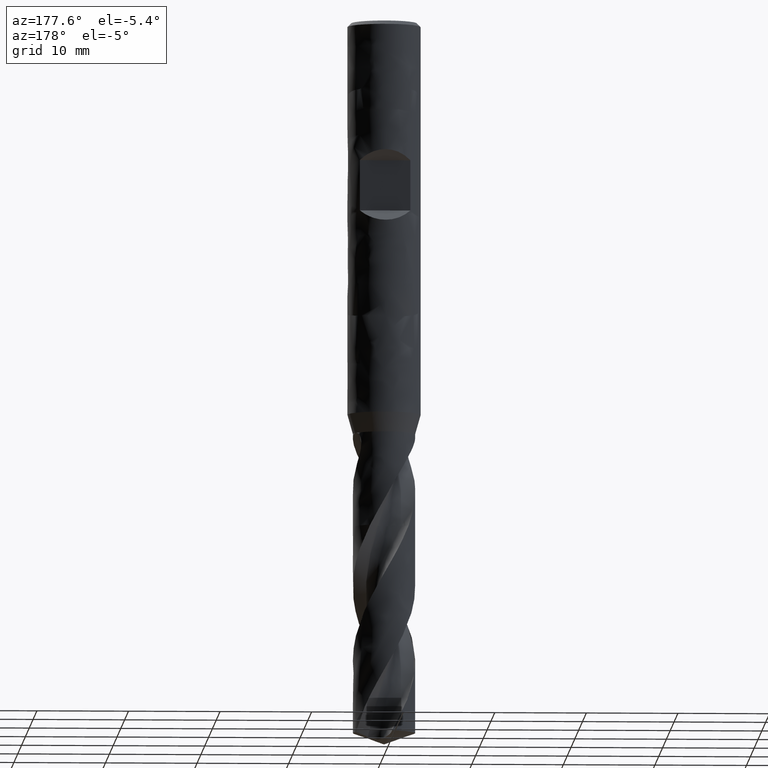
[diagram: clean part render]
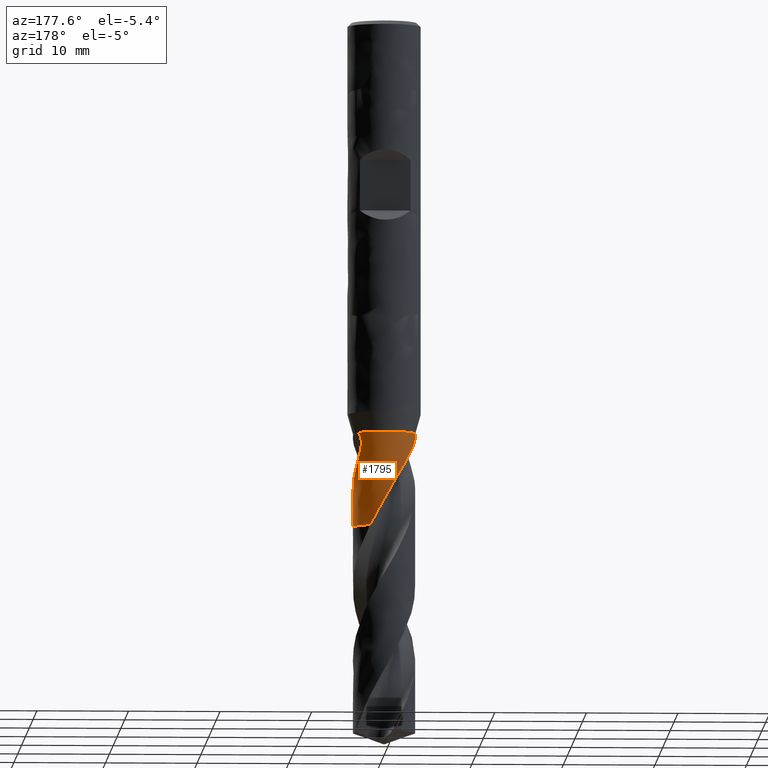
[diagram: same view with one face highlighted and labeled with its STEP entity id]
A machine part, auxiliary view. The second image highlights one B-rep face of the part: STEP entity #1795.
In plain terms, the highlighted face is a freeform B-spline surface patch.
Its self-contained STEP definition (entity closure, byte-faithful):
#73 = VERTEX_POINT('', #74);
#74 = CARTESIAN_POINT('', (-3.4, 2.98866225685224E-15, -45.4085586625151));
#102 = VERTEX_POINT('', #103);
#103 = CARTESIAN_POINT('', (-3.4, 2.9636452539366E-15, -45.));
#110 = EDGE_CURVE('', #102, #73, #111, .T.);
#111 = LINE('', #112, #113);
#112 = CARTESIAN_POINT('', (-3.4, 2.9636452539366E-15, -45.));
#113 = VECTOR('', #114, 0.408558662515063);
#114 = DIRECTION('', (-4.44089209850063E-16, 2.50170029156499E-17, -0.408558662515063));
#182 = VERTEX_POINT('', #183);
#183 = CARTESIAN_POINT('', (3.05594404329235, 1.49037109615895, -45.));
#193 = EDGE_CURVE('', #102, #182, #194, .T.);
#194 = CIRCLE('', #195, 3.4);
#195 = AXIS2_PLACEMENT_3D('', #196, #197, #198);
#196 = CARTESIAN_POINT('', (1.68722975549459E-31, 2.75545529808154E-15, -45.));
#197 = DIRECTION('', (3.74939945665464E-33, 6.12323399573677E-17, -1.));
#198 = DIRECTION('', (-1., 6.12323399573677E-17, 0.));
#737 = VERTEX_POINT('', #738);
#738 = CARTESIAN_POINT('', (2.59483660048094, -2.19700318998505, -55.2));
#808 = EDGE_CURVE('', #809, #737, #811, .T.);
#809 = VERTEX_POINT('', #810);
#810 = CARTESIAN_POINT('', (3.38150274850541, -0.354173914695003, -51.6263211859959));
#811 = B_SPLINE_CURVE_WITH_KNOTS('', 3, (#812, #813, #814, #815, #816, #817, #818, #819, #820, #821, #822, #823, #824, #825, #826, #827, #828, #829, #830, #831, #832, #833, #834, #835, #836, #837, #838, #839, #840, #841, #842, #843, #844, #845, #846, #847, #848), .UNSPECIFIED., .F., .U., (4, 3, 3, 3, 3, 3, 3, 3, 3, 3, 3, 3, 4), (0., 0.295825946567022, 0.591601726826728, 1.03537001282404, 1.47912344320711, 1.77485854566974, 2.07057975933555, 2.3663097558353, 2.56342166128522, 3.00702790857299, 3.30269293232862, 3.96803797655142, 4.11188661198496), .UNSPECIFIED.);
#812 = CARTESIAN_POINT('', (3.38150274850541, -0.35417391469501, -51.626321185996));
#813 = CARTESIAN_POINT('', (3.37660136726876, -0.400970229825815, -51.7129799823256));
#814 = CARTESIAN_POINT('', (3.37070113652021, -0.447914696081118, -51.7995081920098));
#815 = CARTESIAN_POINT('', (3.36379120329065, -0.494882552394595, -51.8859370004317));
#816 = CARTESIAN_POINT('', (3.35688244185092, -0.541842443876248, -51.9723511522143));
#817 = CARTESIAN_POINT('', (3.34896557069564, -0.588824343587828, -52.0586788278979));
#818 = CARTESIAN_POINT('', (3.34002794634231, -0.635777726609351, -52.144910299616));
#819 = CARTESIAN_POINT('', (3.32661834858321, -0.706224408507851, -52.2742880071814));
#820 = CARTESIAN_POINT('', (3.31090839742392, -0.776622115886645, -52.4034755986562));
#821 = CARTESIAN_POINT('', (3.29285069377956, -0.846837828911448, -52.5324128566577));
#822 = CARTESIAN_POINT('', (3.27479359463599, -0.917051191390754, -52.6613457983477));
#823 = CARTESIAN_POINT('', (3.25437783836448, -0.987112152026485, -52.7900536255486));
#824 = CARTESIAN_POINT('', (3.2316115349962, -1.05673406630026, -52.9185610690558));
#825 = CARTESIAN_POINT('', (3.21643915637707, -1.10313290525375, -53.004203588912));
#826 = CARTESIAN_POINT('', (3.20022160904715, -1.14934276123285, -53.0897699947115));
#827 = CARTESIAN_POINT('', (3.18297363274164, -1.19527354746583, -53.175271835194));
#828 = CARTESIAN_POINT('', (3.16572646646387, -1.24120217662192, -53.2607696601988));
#829 = CARTESIAN_POINT('', (3.14744645287509, -1.2868586552864, -53.346212055198));
#830 = CARTESIAN_POINT('', (3.12815446125566, -1.33215977514949, -53.4316076604703));
#831 = CARTESIAN_POINT('', (3.10886189666969, -1.37746224044266, -53.5170058019673));
#832 = CARTESIAN_POINT('', (3.08855461014928, -1.42241445038192, -53.6023672400044));
#833 = CARTESIAN_POINT('', (3.06727587788231, -1.46690786655512, -53.6877189268737));
#834 = CARTESIAN_POINT('', (3.05309303707365, -1.49656391141252, -53.7446080954778));
#835 = CARTESIAN_POINT('', (3.03847893622709, -1.52601610938034, -53.8014980082676));
#836 = CARTESIAN_POINT('', (3.02345063625486, -1.55523189593387, -53.8583979159166));
#837 = CARTESIAN_POINT('', (2.98962899702624, -1.62098289867006, -53.9864528623976));
#838 = CARTESIAN_POINT('', (2.95369624376369, -1.68556495750301, -54.1145729912831));
#839 = CARTESIAN_POINT('', (2.91572036578301, -1.74887813999666, -54.2426918445925));
#840 = CARTESIAN_POINT('', (2.89040931812769, -1.79107658449666, -54.3280834819711));
#841 = CARTESIAN_POINT('', (2.86418592026526, -1.83271946093426, -54.413485917461));
#842 = CARTESIAN_POINT('', (2.83706577426642, -1.8737816821834, -54.4988760881653));
#843 = CARTESIAN_POINT('', (2.77603638868094, -1.96618539320022, -54.6910324892904));
#844 = CARTESIAN_POINT('', (2.71044091954591, -2.05566953799557, -54.8832187288299));
#845 = CARTESIAN_POINT('', (2.64067373476331, -2.1416914405514, -55.0753642112545));
#846 = CARTESIAN_POINT('', (2.62558996068826, -2.16028950994036, -55.1169063639938));
#847 = CARTESIAN_POINT('', (2.61030810675985, -2.17873010283612, -55.1584562199713));
#848 = CARTESIAN_POINT('', (2.59483660048094, -2.19700318998505, -55.2));
#851 = VERTEX_POINT('', #852);
#852 = CARTESIAN_POINT('', (3.35671535707677, 0.540797569858585, -50.0542903603469));
#861 = EDGE_CURVE('', #851, #182, #862, .T.);
#862 = B_SPLINE_CURVE_WITH_KNOTS('', 3, (#863, #864, #865, #866, #867, #868, #869, #870, #871, #872, #873, #874, #875, #876, #877, #878, #879, #880, #881, #882, #883, #884, #885, #886, #887, #888, #889, #890, #891, #892, #893, #894, #895, #896, #897, #898, #899, #900, #901, #902, #903, #904, #905, #906, #907, #908, #909, #910, #911, #912, #913, #914, #915, #916, #917, #918, #919, #920, #921, #922, #923, #924, #925, #926, #927, #928, #929, #930, #931, #932, #933, #934, #935, #936, #937, #938, #939, #940, #941, #942, #943, #944, #945, #946, #947, #948, #949, #950, #951, #952, #953, #954, #955, #956, #957, #958, #959), .UNSPECIFIED., .F., .U., (4, 3, 3, 3, 3, 3, 3, 3, 3, 3, 3, 3, 3, 3, 3, 3, 3, 3, 3, 3, 3, 3, 3, 3, 3, 3, 3, 3, 3, 3, 3, 3, 4), (0., 0.295935055596884, 0.591722401350313, 0.887311664046606, 1.1826713246924, 1.47779100415829, 1.77266092452332, 2.06726673079628, 2.36162725529569, 2.65576471645164, 2.94972851593592, 3.24359142521459, 3.43986957261178, 3.63617848573058, 3.83255734877067, 4.02905814103505, 4.22575591087512, 4.42275349300108, 4.62019359469913, 4.6786423295232, 4.73712066163838, 4.86915777998035, 5.00150010474123, 5.13417942459059, 5.22243499881276, 5.31076255686909, 5.39913510928527, 5.48751629758437, 5.57586525984147, 5.66414351172181, 5.75232121798764, 5.84038054167461, 5.99612600235815), .UNSPECIFIED.);
#863 = CARTESIAN_POINT('', (3.35671535707677, 0.540797569858584, -50.0542903603469));
#864 = CARTESIAN_POINT('', (3.34812211880466, 0.594135558937489, -49.9717551868858));
#865 = CARTESIAN_POINT('', (3.3381444762737, 0.647942734287083, -49.8896551310918));
#866 = CARTESIAN_POINT('', (3.32676560030334, 0.701876513810221, -49.8078473790799));
#867 = CARTESIAN_POINT('', (3.31539240386285, 0.755783373406235, -49.7260804597103));
#868 = CARTESIAN_POINT('', (3.30261683385513, 0.809827241486421, -49.644587521126));
#869 = CARTESIAN_POINT('', (3.28847800010068, 0.863662227293637, -49.5632056073171));
#870 = CARTESIAN_POINT('', (3.27434863484938, 0.917461160853444, -49.4818781933999));
#871 = CARTESIAN_POINT('', (3.25885472338853, 0.971062352843084, -49.4006456568115));
#872 = CARTESIAN_POINT('', (3.24209421406029, 1.02412162713069, -49.3193319973922));
#873 = CARTESIAN_POINT('', (3.22534672363291, 1.07713968707221, -49.238081499208));
#874 = CARTESIAN_POINT('', (3.20733255284338, 1.1296235887085, -49.1567312725228));
#875 = CARTESIAN_POINT('', (3.18820334544069, 1.18125332935862, -49.075113383091));
#876 = CARTESIAN_POINT('', (3.16908968061329, 1.23284112059002, -48.9935618085966));
#877 = CARTESIAN_POINT('', (3.14885891012788, 1.2835875300021, -48.9117259868294));
#878 = CARTESIAN_POINT('', (3.12770849183112, 1.33320650693367, -48.8294586869836));
#879 = CARTESIAN_POINT('', (3.10657597308435, 1.38278349144004, -48.747261009763));
#880 = CARTESIAN_POINT('', (3.08451889402596, 1.43124986729573, -48.6646149058704));
#881 = CARTESIAN_POINT('', (3.06178829923336, 1.47832757218343, -48.5813807263246));
#882 = CARTESIAN_POINT('', (3.03907806416547, 1.52536310971384, -48.4982210993805));
#883 = CARTESIAN_POINT('', (3.01568953584114, 1.57102532445415, -48.4144502950771));
#884 = CARTESIAN_POINT('', (2.99191993029417, 1.61505886292375, -48.3299537066071));
#885 = CARTESIAN_POINT('', (2.96817011475431, 1.65905574011859, -48.245527467983));
#886 = CARTESIAN_POINT('', (2.94403096251662, 1.70144331945818, -48.1603478831293));
#887 = CARTESIAN_POINT('', (2.91984911534915, 1.74197621786143, -48.0743252632907));
#888 = CARTESIAN_POINT('', (2.89568559293391, 1.78247840085591, -47.9883678304987));
#889 = CARTESIAN_POINT('', (2.87147007828286, 1.82114455828852, -47.9015292456017));
#890 = CARTESIAN_POINT('', (2.84760392844394, 1.857727608319, -47.8137507161234));
#891 = CARTESIAN_POINT('', (2.82375186941638, 1.89428905935424, -47.7260240119588));
#892 = CARTESIAN_POINT('', (2.80023446547284, 1.92879218347353, -47.6373090946054));
#893 = CARTESIAN_POINT('', (2.77751026818138, 1.9609785083338, -47.5475912792358));
#894 = CARTESIAN_POINT('', (2.75479386997585, 1.99315378664704, -47.4579042555788));
#895 = CARTESIAN_POINT('', (2.73285208274194, 2.0230396893914, -47.3671472419364));
#896 = CARTESIAN_POINT('', (2.71222423216939, 2.05032673358008, -47.275359691067));
#897 = CARTESIAN_POINT('', (2.69844639166171, 2.06855241062944, -47.214052564955));
#898 = CARTESIAN_POINT('', (2.68524854000149, 2.08562821922462, -47.1522539976714));
#899 = CARTESIAN_POINT('', (2.67281330158213, 2.10144451625202, -47.0899982549735));
#900 = CARTESIAN_POINT('', (2.66037611399476, 2.11726329241322, -47.0277327539664));
#901 = CARTESIAN_POINT('', (2.64869443709926, 2.13183172269772, -46.964974517262));
#902 = CARTESIAN_POINT('', (2.63797465087555, 2.1450150911679, -46.9017827859272));
#903 = CARTESIAN_POINT('', (2.62725104491593, 2.15820315721178, -46.8385685377512));
#904 = CARTESIAN_POINT('', (2.61748228019566, 2.17001507858256, -46.7748741258283));
#905 = CARTESIAN_POINT('', (2.60890454100429, 2.18027913257161, -46.710795786514));
#906 = CARTESIAN_POINT('', (2.600321476, 2.19054955938573, -46.6466776617457));
#907 = CARTESIAN_POINT('', (2.5929225145513, 2.19928096245978, -46.5821135320246));
#908 = CARTESIAN_POINT('', (2.58697816449397, 2.20625111363856, -46.5172570266411));
#909 = CARTESIAN_POINT('', (2.58102785566341, 2.21322825188068, -46.4523355073865));
#910 = CARTESIAN_POINT('', (2.57652741381941, 2.21845081841167, -46.3870366746881));
#911 = CARTESIAN_POINT('', (2.57379023300548, 2.22162189323153, -46.3216047068036));
#912 = CARTESIAN_POINT('', (2.57104888010338, 2.22479780149302, -46.256073005669));
#913 = CARTESIAN_POINT('', (2.57007275312275, 2.22592208235542, -46.1902888122987));
#914 = CARTESIAN_POINT('', (2.57121973862342, 2.22459638040552, -46.1246463549924));
#915 = CARTESIAN_POINT('', (2.57236930062035, 2.22326770050506, -46.0588564437336));
#916 = CARTESIAN_POINT('', (2.5756576548986, 2.21947454042465, -45.9930372199119));
#917 = CARTESIAN_POINT('', (2.58146363209447, 2.21270095498095, -45.9278313269609));
#918 = CARTESIAN_POINT('', (2.58318239144781, 2.21069575190416, -45.9085282476306));
#919 = CARTESIAN_POINT('', (2.58512254831918, 2.20842763225882, -45.889268702942));
#920 = CARTESIAN_POINT('', (2.58729349553255, 2.20588131321135, -45.8700752902118));
#921 = CARTESIAN_POINT('', (2.58946554207094, 2.20333370475793, -45.8508721583145));
#922 = CARTESIAN_POINT('', (2.59186941317045, 2.20050668891363, -45.8317283552503));
#923 = CARTESIAN_POINT('', (2.59451390483219, 2.1973842626251, -45.8126698797712));
#924 = CARTESIAN_POINT('', (2.60048485246128, 2.19033419545561, -45.769638109007));
#925 = CARTESIAN_POINT('', (2.60769567830288, 2.18176571660201, -45.726967426863));
#926 = CARTESIAN_POINT('', (2.61622603531921, 2.1714882758417, -45.6850306151295));
#927 = CARTESIAN_POINT('', (2.62477611042503, 2.16118707857315, -45.6429968656235));
#928 = CARTESIAN_POINT('', (2.63467803247685, 2.14913797630017, -45.601586270329));
#929 = CARTESIAN_POINT('', (2.64595348286353, 2.13516513799809, -45.5612913754243));
#930 = CARTESIAN_POINT('', (2.65725764493717, 2.12115671940914, -45.5208938740278));
#931 = CARTESIAN_POINT('', (2.66998598940769, 2.10516036523282, -45.4814777423419));
#932 = CARTESIAN_POINT('', (2.684055547359, 2.08706631870944, -45.4436540591514));
#933 = CARTESIAN_POINT('', (2.69341433000467, 2.0750305284466, -45.4184945174612));
#934 = CARTESIAN_POINT('', (2.70338599508037, 2.06204010431466, -45.3939815689343));
#935 = CARTESIAN_POINT('', (2.7139100927993, 2.04809472637427, -45.3703126146012));
#936 = CARTESIAN_POINT('', (2.72444277428092, 2.03413797417472, -45.346624355175));
#937 = CARTESIAN_POINT('', (2.73555222566591, 2.01919319126075, -45.3237301979871));
#938 = CARTESIAN_POINT('', (2.74714508667626, 2.00329575269117, -45.3018272537485));
#939 = CARTESIAN_POINT('', (2.75874385312961, 1.98739021591207, -45.2799131520752));
#940 = CARTESIAN_POINT('', (2.7708543508845, 1.97049225221301, -45.2589394480727));
#941 = CARTESIAN_POINT('', (2.78335217836988, 1.95267781550455, -45.2390850911573));
#942 = CARTESIAN_POINT('', (2.79585122715952, 1.93486163794573, -45.2192287940479));
#943 = CARTESIAN_POINT('', (2.80876886508416, 1.91608364915801, -45.2004424821072));
#944 = CARTESIAN_POINT('', (2.82195764252379, 1.89645855841924, -45.1828690105807));
#945 = CARTESIAN_POINT('', (2.83514161099781, 1.87684062349054, -45.1653019467914));
#946 = CARTESIAN_POINT('', (2.84862945723662, 1.85632656915984, -45.1489022125218));
#947 = CARTESIAN_POINT('', (2.86226339686785, 1.83506082922352, -45.1337639787787));
#948 = CARTESIAN_POINT('', (2.87588642453155, 1.81381210939072, -45.1186378609698));
#949 = CARTESIAN_POINT('', (2.88968814795519, 1.79176128975257, -45.1047335912294));
#950 = CARTESIAN_POINT('', (2.90351433958578, 1.76906881715225, -45.0920930797878));
#951 = CARTESIAN_POINT('', (2.91732478370321, 1.74640219042624, -45.0794669654141));
#952 = CARTESIAN_POINT('', (2.93119066203751, 1.72304434749913, -45.0680720729014));
#953 = CARTESIAN_POINT('', (2.94497259848737, 1.69915755424829, -45.0579033741686));
#954 = CARTESIAN_POINT('', (2.95873603206107, 1.67530283010318, -45.0477483273761));
#955 = CARTESIAN_POINT('', (2.97244369406482, 1.65087229852805, -45.0387943813469));
#956 = CARTESIAN_POINT('', (2.98597766024085, 1.62601888443617, -45.0310005048623));
#957 = CARTESIAN_POINT('', (3.00991440775046, 1.58206208048594, -45.0172159238232));
#958 = CARTESIAN_POINT('', (3.03339589238732, 1.53660514325169, -45.0070126278577));
#959 = CARTESIAN_POINT('', (3.05594404329235, 1.49037109615894, -45.));
#1119 = EDGE_CURVE('', #851, #809, #1120, .T.);
#1120 = B_SPLINE_CURVE_WITH_KNOTS('', 3, (#1121, #1122, #1123, #1124, #1125, #1126, #1127, #1128, #1129, #1130, #1131, #1132, #1133, #1134, #1135, #1136, #1137, #1138, #1139, #1140, #1141, #1142, #1143, #1144, #1145, #1146, #1147, #1148), .UNSPECIFIED., .F., .U., (4, 3, 3, 3, 3, 3, 3, 3, 3, 4), (0., 0.295273890232346, 0.590691941489852, 0.722025966344, 0.918983365969133, 1.05027892922979, 1.10866406376892, 1.30579916356821, 1.43721626305934, 1.81113899879215), .UNSPECIFIED.);
#1121 = CARTESIAN_POINT('', (3.35671535707677, 0.540797569858585, -50.0542903603469));
#1122 = CARTESIAN_POINT('', (3.36528939670578, 0.487578746219279, -50.1366411372757));
#1123 = CARTESIAN_POINT('', (3.37245565752199, 0.435032528534128, -50.2195893860182));
#1124 = CARTESIAN_POINT('', (3.37832492982854, 0.383302319975972, -50.3031174948859));
#1125 = CARTESIAN_POINT('', (3.38419706767906, 0.331546855273795, -50.3866863845276));
#1126 = CARTESIAN_POINT('', (3.38877201504144, 0.280592045660408, -50.4708586661072));
#1127 = CARTESIAN_POINT('', (3.39216884030501, 0.230630784726905, -50.5556478365801));
#1128 = CARTESIAN_POINT('', (3.39367896716318, 0.208419503265754, -50.593342564356));
#1129 = CARTESIAN_POINT('', (3.39495655958413, 0.186403613533942, -50.6311632253536));
#1130 = CARTESIAN_POINT('', (3.39601319064098, 0.164603793979556, -50.6691127366494));
#1131 = CARTESIAN_POINT('', (3.3975977861451, 0.131911307957771, -50.7260243943112));
#1132 = CARTESIAN_POINT('', (3.39868661065083, 0.099702436495897, -50.7832314185552));
#1133 = CARTESIAN_POINT('', (3.39932175969052, 0.0679085715854667, -50.8406682804365));
#1134 = CARTESIAN_POINT('', (3.3997451621678, 0.046714174169613, -50.878956789256));
#1135 = CARTESIAN_POINT('', (3.39996690985142, 0.025701503507208, -50.9173489359422));
#1136 = CARTESIAN_POINT('', (3.39999656705935, 0.00483156130384804, -50.9558175763131));
#1137 = CARTESIAN_POINT('', (3.4000097551674, -0.00444898369787444, -50.9729239939849));
#1138 = CARTESIAN_POINT('', (3.39998491847776, -0.0137016103062365, -50.9900456485842));
#1139 = CARTESIAN_POINT('', (3.39992267307988, -0.0229307016325711, -51.0071797728343));
#1140 = CARTESIAN_POINT('', (3.39971250395344, -0.0540923638268133, -51.065032466344));
#1141 = CARTESIAN_POINT('', (3.39907778875272, -0.0849816789841707, -51.1230316643383));
#1142 = CARTESIAN_POINT('', (3.39802696494435, -0.115813408166297, -51.1810517277048));
#1143 = CARTESIAN_POINT('', (3.39732644932277, -0.13636690891546, -51.2197299156465));
#1144 = CARTESIAN_POINT('', (3.39644050584438, -0.156897293433113, -51.2584175149135));
#1145 = CARTESIAN_POINT('', (3.39536452977608, -0.177481576335194, -51.2970707024992));
#1146 = CARTESIAN_POINT('', (3.39230304145684, -0.236050296887147, -51.4070511061362));
#1147 = CARTESIAN_POINT('', (3.3876980735002, -0.295023571802544, -51.516784836751));
#1148 = CARTESIAN_POINT('', (3.38150274850541, -0.354173914695002, -51.6263211859959));
#1452 = EDGE_CURVE('', #1453, #73, #1455, .T.);
#1453 = VERTEX_POINT('', #1454);
#1454 = CARTESIAN_POINT('', (-2.8898286594235, 1.79133757822879, -46.9998791961814));
#1455 = B_SPLINE_CURVE_WITH_KNOTS('', 3, (#1456, #1457, #1458, #1459, #1460, #1461, #1462, #1463, #1464, #1465, #1466, #1467, #1468, #1469, #1470, #1471, #1472, #1473, #1474, #1475, #1476, #1477, #1478, #1479, #1480, #1481, #1482, #1483), .UNSPECIFIED., .F., .U., (4, 3, 3, 3, 3, 3, 3, 3, 3, 4), (0., 0.298147437788339, 0.596401648626703, 0.894725458992335, 1.19308228250035, 1.49141930924379, 1.78969116485611, 2.08784747407281, 2.38582261798666, 2.48078010305395), .UNSPECIFIED.);
#1456 = CARTESIAN_POINT('', (-2.8898286594235, 1.79133757822879, -46.9998791961814));
#1457 = CARTESIAN_POINT('', (-2.92361918789611, 1.73682588887219, -46.9239611278877));
#1458 = CARTESIAN_POINT('', (-2.95664542453151, 1.68010016735598, -46.8492429435373));
#1459 = CARTESIAN_POINT('', (-2.98859184953946, 1.62120904169276, -46.7758390033723));
#1460 = CARTESIAN_POINT('', (-3.02054971525359, 1.56229682584291, -46.7024087756677));
#1461 = CARTESIAN_POINT('', (-3.05145003664322, 1.5011744447202, -46.6302350025866));
#1462 = CARTESIAN_POINT('', (-3.08096976832522, 1.4379239502373, -46.5594401363378));
#1463 = CARTESIAN_POINT('', (-3.11049638862537, 1.37465869584707, -46.4886287496543));
#1464 = CARTESIAN_POINT('', (-3.13866663282486, 1.30921072357892, -46.4191367171227));
#1465 = CARTESIAN_POINT('', (-3.16515564580097, 1.24168826114056, -46.3511101380432));
#1466 = CARTESIAN_POINT('', (-3.19164759010714, 1.17415832652403, -46.2830760309989));
#1467 = CARTESIAN_POINT('', (-3.21648321287793, 1.10448813911186, -46.2164452699896));
#1468 = CARTESIAN_POINT('', (-3.23933338330994, 1.03282100664819, -46.1513880125972));
#1469 = CARTESIAN_POINT('', (-3.26218203757269, 0.961158629488353, -46.086335071926));
#1470 = CARTESIAN_POINT('', (-3.28306865200546, 0.887425984651866, -46.0227838238254));
#1471 = CARTESIAN_POINT('', (-3.30166271963745, 0.811802491839128, -45.9609389341781));
#1472 = CARTESIAN_POINT('', (-3.32025272543229, 0.73619551882824, -45.8991075544241));
#1473 = CARTESIAN_POINT('', (-3.33657325053636, 0.658607991902076, -45.8389072791148));
#1474 = CARTESIAN_POINT('', (-3.35029350481341, 0.579252476563597, -45.7806013702073));
#1475 = CARTESIAN_POINT('', (-3.36400844405353, 0.499927702455298, -45.7223180482032));
#1476 = CARTESIAN_POINT('', (-3.37514365982137, 0.418727039914867, -45.6658465200189));
#1477 = CARTESIAN_POINT('', (-3.38336631956356, 0.335905265875534, -45.6115288748079));
#1478 = CARTESIAN_POINT('', (-3.39158398306521, 0.253133815882053, -45.5572442340055));
#1479 = CARTESIAN_POINT('', (-3.39690526916603, 0.168609416016731, -45.5050217211331));
#1480 = CARTESIAN_POINT('', (-3.39899545245636, 0.082643294833694, -45.4553133486285));
#1481 = CARTESIAN_POINT('', (-3.39966154341272, 0.0552479672862031, -45.4394724903011));
#1482 = CARTESIAN_POINT('', (-3.4, 0.0276963133078537, -45.4238816736519));
#1483 = CARTESIAN_POINT('', (-3.4, 3.12050124102648E-15, -45.4085586625151));
#1605 = VERTEX_POINT('', #1606);
#1606 = CARTESIAN_POINT('', (1.63663427648705, 2.98017251933974, -55.2));
#1613 = EDGE_CURVE('', #1453, #1605, #1614, .T.);
#1614 = B_SPLINE_CURVE_WITH_KNOTS('', 3, (#1615, #1616, #1617, #1618, #1619, #1620, #1621, #1622, #1623, #1624, #1625, #1626, #1627, #1628, #1629, #1630, #1631, #1632, #1633, #1634, #1635, #1636, #1637, #1638, #1639, #1640, #1641, #1642, #1643, #1644, #1645, #1646, #1647, #1648, #1649, #1650, #1651, #1652, #1653, #1654, #1655, #1656, #1657, #1658, #1659, #1660, #1661, #1662, #1663, #1664, #1665, #1666, #1667, #1668, #1669, #1670, #1671, #1672, #1673, #1674, #1675, #1676, #1677, #1678, #1679, #1680, #1681, #1682, #1683, #1684, #1685, #1686, #1687, #1688, #1689, #1690, #1691, #1692, #1693, #1694, #1695, #1696, #1697, #1698, #1699, #1700, #1701, #1702, #1703, #1704, #1705, #1706, #1707, #1708, #1709, #1710, #1711, #1712, #1713, #1714, #1715, #1716, #1717, #1718, #1719, #1720), .UNSPECIFIED., .F., .U., (4, 3, 3, 3, 3, 3, 3, 3, 3, 3, 3, 3, 3, 3, 3, 3, 3, 3, 3, 3, 3, 3, 3, 3, 3, 3, 3, 3, 3, 3, 3, 3, 3, 3, 3, 4), (0., 0.294735687164631, 0.589497532564365, 0.884290441692765, 1.17913084282521, 1.47402285133327, 1.76897119889429, 2.0639842393917, 2.35906182720708, 2.65421598347761, 2.94944951102823, 3.24474853104997, 3.5400856072028, 3.73703062837148, 4.03245092790192, 4.32797859559434, 4.45933092422398, 4.59067871958685, 4.78763368513283, 4.98454741623308, 5.18147479761389, 5.312808315939, 5.75562661348304, 6.05088638096583, 6.24778919009729, 6.30617177854132, 6.60202435169205, 6.89787543614818, 7.34178887691168, 7.63759288730383, 7.93340634012144, 8.13055615919765, 8.57435186049019, 8.87009887363247, 9.53586239801157, 9.70703675072014), .UNSPECIFIED.);
#1615 = CARTESIAN_POINT('', (-2.8898286594235, 1.79133757822879, -46.9998791961814));
#1616 = CARTESIAN_POINT('', (-2.8564248015775, 1.84522548127503, -47.0749285214171));
#1617 = CARTESIAN_POINT('', (-2.82171896991075, 1.89784622197632, -47.1503299336206));
#1618 = CARTESIAN_POINT('', (-2.78583439609866, 1.94913486385977, -47.2260524375948));
#1619 = CARTESIAN_POINT('', (-2.74994663747673, 2.00042805768726, -47.301781662055));
#1620 = CARTESIAN_POINT('', (-2.71286761420966, 2.05040637881992, -47.3778575328293));
#1621 = CARTESIAN_POINT('', (-2.67472617131797, 2.09900926831368, -47.4542566680094));
#1622 = CARTESIAN_POINT('', (-2.63658070885777, 2.14761727986443, -47.5306638545776));
#1623 = CARTESIAN_POINT('', (-2.5973623534323, 2.19486301011278, -47.6074214952653));
#1624 = CARTESIAN_POINT('', (-2.55719484029992, 2.24070402970662, -47.6844996702816));
#1625 = CARTESIAN_POINT('', (-2.51702085606313, 2.28655243442345, -47.7615902628184));
#1626 = CARTESIAN_POINT('', (-2.47588442413039, 2.33101048841919, -47.8390245369625));
#1627 = CARTESIAN_POINT('', (-2.43391061467523, 2.37404277968432, -47.9167767453589));
#1628 = CARTESIAN_POINT('', (-2.39192945833633, 2.41708260310451, -47.9945425631093));
#1629 = CARTESIAN_POINT('', (-2.34909813127055, 2.45870883660888, -48.0726491674215));
#1630 = CARTESIAN_POINT('', (-2.30554751034536, 2.4988898890388, -48.1510787073962));
#1631 = CARTESIAN_POINT('', (-2.26198856908368, 2.5390786180499, -48.2295232313172));
#1632 = CARTESIAN_POINT('', (-2.2176975721651, 2.57783348841897, -48.308312208666));
#1633 = CARTESIAN_POINT('', (-2.1727954465796, 2.61514052152518, -48.3874200024367));
#1634 = CARTESIAN_POINT('', (-2.12788347231931, 2.65245573742522, -48.4665451474335));
#1635 = CARTESIAN_POINT('', (-2.0823479314574, 2.68833250302805, -48.5460101613263));
#1636 = CARTESIAN_POINT('', (-2.03631304108131, 2.72276131872081, -48.6257957794442));
#1637 = CARTESIAN_POINT('', (-1.99026807851077, 2.75719766725926, -48.70559885424));
#1638 = CARTESIAN_POINT('', (-1.94371394312551, 2.7901926667128, -48.7857446980164));
#1639 = CARTESIAN_POINT('', (-1.89677354211866, 2.82174593645827, -48.8662153221431));
#1640 = CARTESIAN_POINT('', (-1.84982096074252, 2.85330739383037, -48.9467068272572));
#1641 = CARTESIAN_POINT('', (-1.80246775703422, 2.88343613903596, -49.0275400667504));
#1642 = CARTESIAN_POINT('', (-1.75482542369253, 2.91214486802468, -49.1086915906947));
#1643 = CARTESIAN_POINT('', (-1.70717027862889, 2.94086131721155, -49.1898649374735));
#1644 = CARTESIAN_POINT('', (-1.65921463660907, 2.96816360616043, -49.2713750210856));
#1645 = CARTESIAN_POINT('', (-1.6110750676355, 2.99406698763464, -49.3532062880895));
#1646 = CARTESIAN_POINT('', (-1.56292481972801, 3.01997611532771, -49.43505570795));
#1647 = CARTESIAN_POINT('', (-1.51458182639182, 3.04449042335969, -49.517245428003));
#1648 = CARTESIAN_POINT('', (-1.46616189313568, 3.06763252413278, -49.5997621538115));
#1649 = CARTESIAN_POINT('', (-1.41773571984757, 3.09077760730258, -49.6822895138148));
#1650 = CARTESIAN_POINT('', (-1.36922245732616, 3.11255504485609, -49.7651607909048));
#1651 = CARTESIAN_POINT('', (-1.32073315644219, 3.13299599895609, -49.8483624097511));
#1652 = CARTESIAN_POINT('', (-1.28839814956312, 3.14662701403342, -49.9038452661484));
#1653 = CARTESIAN_POINT('', (-1.25607016912864, 3.15966540553274, -49.9594810719089));
#1654 = CARTESIAN_POINT('', (-1.22378127855862, 3.17212222057245, -50.0152660152245));
#1655 = CARTESIAN_POINT('', (-1.17534748892994, 3.19080761819453, -50.0989442141746));
#1656 = CARTESIAN_POINT('', (-1.12699409777216, 3.2081876542186, -50.1829705088124));
#1657 = CARTESIAN_POINT('', (-1.07879027820651, 3.22431566935499, -50.2673108665818));
#1658 = CARTESIAN_POINT('', (-1.03056893934541, 3.24044954609041, -50.3516818771845));
#1659 = CARTESIAN_POINT('', (-0.982487386553786, 3.2553331365351, -50.4363814474429));
#1660 = CARTESIAN_POINT('', (-0.934651837095527, 3.26900993320844, -50.5214036349646));
#1661 = CARTESIAN_POINT('', (-0.913390508632838, 3.27508881951126, -50.5591932010088));
#1662 = CARTESIAN_POINT('', (-0.89217723951288, 3.28092953719905, -50.5970489563464));
#1663 = CARTESIAN_POINT('', (-0.87102475794708, 3.28653554233683, -50.6349724777875));
#1664 = CARTESIAN_POINT('', (-0.849873006401394, 3.29214135399866, -50.6728946904019));
#1665 = CARTESIAN_POINT('', (-0.828782907688122, 3.29751228139546, -50.7108868280868));
#1666 = CARTESIAN_POINT('', (-0.807761041639669, 3.3026537965111, -50.7489468057217));
#1667 = CARTESIAN_POINT('', (-0.776238922126, 3.31036345718458, -50.8060174368887));
#1668 = CARTESIAN_POINT('', (-0.74487111579128, 3.31755755124306, -50.8632452878843));
#1669 = CARTESIAN_POINT('', (-0.713628485426957, 3.32426448779084, -50.9205955701696));
#1670 = CARTESIAN_POINT('', (-0.682392396012453, 3.33097002017594, -50.9779338456131));
#1671 = CARTESIAN_POINT('', (-0.651279624928435, 3.33718956982533, -51.0353979224753));
#1672 = CARTESIAN_POINT('', (-0.620197124106053, 3.34295610609093, -51.0929214870331));
#1673 = CARTESIAN_POINT('', (-0.589112468609875, 3.34872304209928, -51.1504490391889));
#1674 = CARTESIAN_POINT('', (-0.55805613981661, 3.35403781040483, -51.2080388350831));
#1675 = CARTESIAN_POINT('', (-0.526873380574337, 3.35892906159719, -51.2655944065171));
#1676 = CARTESIAN_POINT('', (-0.506077179184478, 3.36219110278009, -51.3039789909392));
#1677 = CARTESIAN_POINT('', (-0.485213835201343, 3.36526579494581, -51.3423436509969));
#1678 = CARTESIAN_POINT('', (-0.464285060364067, 3.36815073634224, -51.3806863520381));
#1679 = CARTESIAN_POINT('', (-0.393719339127666, 3.37787791683638, -51.5099667506357));
#1680 = CARTESIAN_POINT('', (-0.322422958249976, 3.38544098865845, -51.6390314547928));
#1681 = CARTESIAN_POINT('', (-0.250735092944897, 3.39074208885989, -51.7679512314766));
#1682 = CARTESIAN_POINT('', (-0.202935481775466, 3.39427672512394, -51.8539115982877));
#1683 = CARTESIAN_POINT('', (-0.154961881779656, 3.39680731641865, -51.939822590419));
#1684 = CARTESIAN_POINT('', (-0.106890648788792, 3.39831934773669, -52.0256908119203));
#1685 = CARTESIAN_POINT('', (-0.0748329089381834, 3.39932769105605, -52.0829546043188));
#1686 = CARTESIAN_POINT('', (-0.0427257618030256, 3.3998835157324, -52.1402005373759));
#1687 = CARTESIAN_POINT('', (-0.010579202649452, 3.39998354120595, -52.1974233133477));
#1688 = CARTESIAN_POINT('', (-0.00104760002156978, 3.40001319921886, -52.2143901295852));
#1689 = CARTESIAN_POINT('', (0.00848756091639661, 3.40000278621682, -52.2313550648512));
#1690 = CARTESIAN_POINT('', (0.0180260311781772, 3.39995221469361, -52.2483179717093));
#1691 = CARTESIAN_POINT('', (0.0663620341900112, 3.39969594453383, -52.3342771553605));
#1692 = CARTESIAN_POINT('', (0.114785933216927, 3.39840846403031, -52.4201902134683));
#1693 = CARTESIAN_POINT('', (0.163267541817925, 3.39607769489874, -52.5060361059633));
#1694 = CARTESIAN_POINT('', (0.211748906465293, 3.39374693749533, -52.591881566492));
#1695 = CARTESIAN_POINT('', (0.260298715149507, 3.39037191856839, -52.677666506319));
#1696 = CARTESIAN_POINT('', (0.308853339060879, 3.38594294325096, -52.7633878625612));
#1697 = CARTESIAN_POINT('', (0.381707728643729, 3.37929743212894, -52.8920095381124));
#1698 = CARTESIAN_POINT('', (0.454588437467307, 3.37027533880237, -53.0205157004126));
#1699 = CARTESIAN_POINT('', (0.527227979632943, 3.35887342087971, -53.1489250205682));
#1700 = CARTESIAN_POINT('', (0.575631713137134, 3.3512756940754, -53.2344912332254));
#1701 = CARTESIAN_POINT('', (0.623932375169957, 3.34262169303643, -53.3200285926332));
#1702 = CARTESIAN_POINT('', (0.672069394394659, 3.3329150497902, -53.4055319965144));
#1703 = CARTESIAN_POINT('', (0.720207950211834, 3.32320809669606, -53.4910381297688));
#1704 = CARTESIAN_POINT('', (0.768188853353653, 3.31244678993605, -53.576519974092));
#1705 = CARTESIAN_POINT('', (0.815923625272414, 3.30064669992448, -53.6619892302268));
#1706 = CARTESIAN_POINT('', (0.847737261730761, 3.29278233274068, -53.7189516442856));
#1707 = CARTESIAN_POINT('', (0.879442774201834, 3.28445640020595, -53.7759126900419));
#1708 = CARTESIAN_POINT('', (0.911008131916652, 3.2756776678394, -53.8328796489013));
#1709 = CARTESIAN_POINT('', (0.982063586744039, 3.25591623105326, -53.9611155842724));
#1710 = CARTESIAN_POINT('', (1.05242687008632, 3.2338559492939, -54.089403127857));
#1711 = CARTESIAN_POINT('', (1.12196603015463, 3.20954704392678, -54.2176888616778));
#1712 = CARTESIAN_POINT('', (1.16830717051883, 3.1933475040616, -54.3031789250014));
#1713 = CARTESIAN_POINT('', (1.2142902360746, 3.17614686667296, -54.388679997238));
#1714 = CARTESIAN_POINT('', (1.25988431149901, 3.15795685873615, -54.4741714073716));
#1715 = CARTESIAN_POINT('', (1.3625222790742, 3.11700887530997, -54.6666232665128));
#1716 = CARTESIAN_POINT('', (1.46322506251734, 3.07102388962678, -54.8591107987723));
#1717 = CARTESIAN_POINT('', (1.56140411754958, 3.0202677334467, -55.0515522017612));
#1718 = CARTESIAN_POINT('', (1.58664691860324, 3.00721782629205, -55.101030779942));
#1719 = CARTESIAN_POINT('', (1.61172936190562, 2.99384965936852, -55.1505196013466));
#1720 = CARTESIAN_POINT('', (1.63663427648705, 2.98017251933974, -55.2));
#1795 = ADVANCED_FACE('', (#1796), #1812, .T.);
#1796 = FACE_OUTER_BOUND('', #1797, .T.);
#1797 = EDGE_LOOP('', (#1798, #1805, #1806, #1807, #1808, #1809, #1810, #1811));
#1798 = ORIENTED_EDGE('', *, *, #1799, .F.);
#1799 = EDGE_CURVE('', #1605, #737, #1800, .T.);
#1800 = CIRCLE('', #1801, 3.4);
#1801 = AXIS2_PLACEMENT_3D('', #1802, #1803, #1804);
#1802 = CARTESIAN_POINT('', (2.06966850007336E-31, 3.3800251656467E-15, -55.2));
#1803 = DIRECTION('', (3.74939945665464E-33, 6.12323399573677E-17, -1.));
#1804 = DIRECTION('', (-1., 6.12323399573677E-17, 0.));
#1805 = ORIENTED_EDGE('', *, *, #1613, .F.);
#1806 = ORIENTED_EDGE('', *, *, #1452, .T.);
#1807 = ORIENTED_EDGE('', *, *, #110, .F.);
#1808 = ORIENTED_EDGE('', *, *, #193, .T.);
#1809 = ORIENTED_EDGE('', *, *, #861, .F.);
#1810 = ORIENTED_EDGE('', *, *, #1119, .T.);
#1811 = ORIENTED_EDGE('', *, *, #808, .T.);
#1812 = (
   BOUNDED_SURFACE ()
   B_SPLINE_SURFACE (2, 1, ((#1813, #1814), (#1815, #1816), (#1817, #1818), (#1819, #1820), (#1821, #1822), (#1823, #1824), (#1825, #1826), (#1827, #1828), (#1829, #1830)), .UNSPECIFIED., .T., .F., .U.)
   B_SPLINE_SURFACE_WITH_KNOTS ((3, 2, 2, 2, 3), (2, 2), (0., 5.34070751110265, 10.6814150222053, 16.0221225333079, 21.3628300444106), (0., 0.311331541406), .UNSPECIFIED.)
   GEOMETRIC_REPRESENTATION_ITEM ()
   RATIONAL_B_SPLINE_SURFACE (((1., 1.), (0.707106781186548, 0.707106781186548), (1., 1.), (0.707106781186548, 0.707106781186548), (1., 1.), (0.707106781186548, 0.707106781186548), (1., 1.), (0.707106781186548, 0.707106781186548), (1., 1.)))
   REPRESENTATION_ITEM ('')
   SURFACE ()
);
#1813 = CARTESIAN_POINT('', (-3.4, 2.9636452539366E-15, -45.));
#1814 = CARTESIAN_POINT('', (-3.4, 3.58821512150174E-15, -55.2));
#1815 = CARTESIAN_POINT('', (-3.4, 3.4, -45.));
#1816 = CARTESIAN_POINT('', (-3.4, 3.4, -55.2));
#1817 = CARTESIAN_POINT('', (1.4791141972894E-31, 3.4, -45.));
#1818 = CARTESIAN_POINT('', (1.72563323017096E-31, 3.4, -55.2));
#1819 = CARTESIAN_POINT('', (3.4, 3.4, -45.));
#1820 = CARTESIAN_POINT('', (3.4, 3.4, -55.2));
#1821 = CARTESIAN_POINT('', (3.4, 2.9636452539366E-15, -45.));
#1822 = CARTESIAN_POINT('', (3.4, 3.58821512150174E-15, -55.2));
#1823 = CARTESIAN_POINT('', (3.4, -3.4, -45.));
#1824 = CARTESIAN_POINT('', (3.4, -3.4, -55.2));
#1825 = CARTESIAN_POINT('', (4.163799117101E-16, -3.4, -45.));
#1826 = CARTESIAN_POINT('', (4.163799117101E-16, -3.4, -55.2));
#1827 = CARTESIAN_POINT('', (-3.4, -3.4, -45.));
#1828 = CARTESIAN_POINT('', (-3.4, -3.4, -55.2));
#1829 = CARTESIAN_POINT('', (-3.4, 2.9636452539366E-15, -45.));
#1830 = CARTESIAN_POINT('', (-3.4, 3.58821512150174E-15, -55.2));